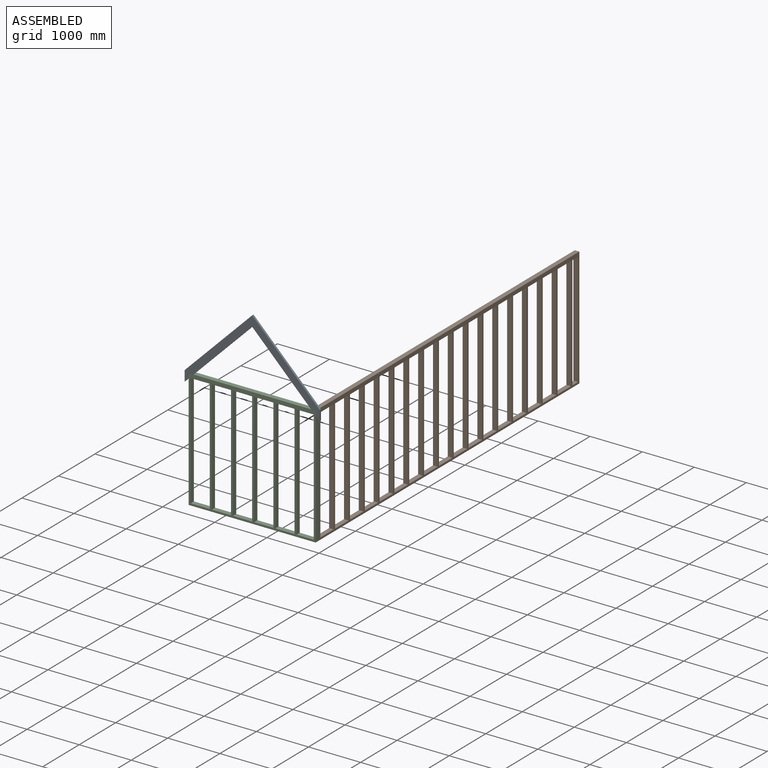
[diagram: assembled view]
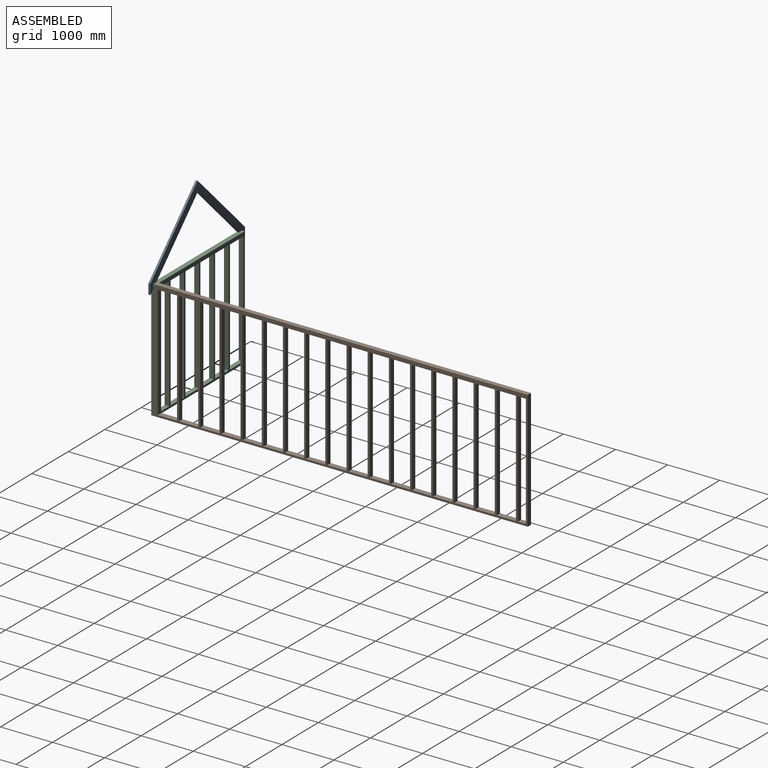
[diagram: assembled view, second angle]
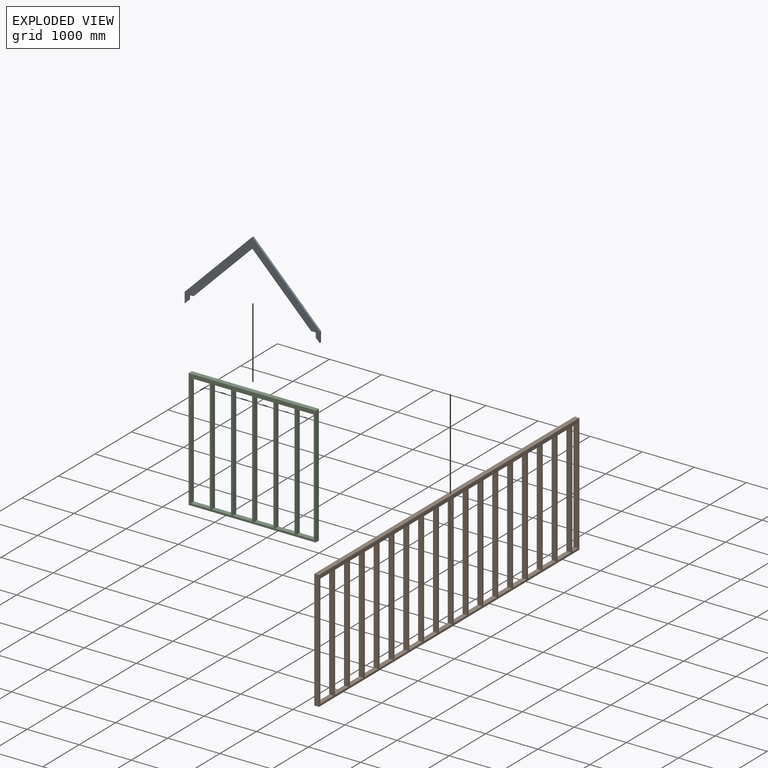
[diagram: exploded view]
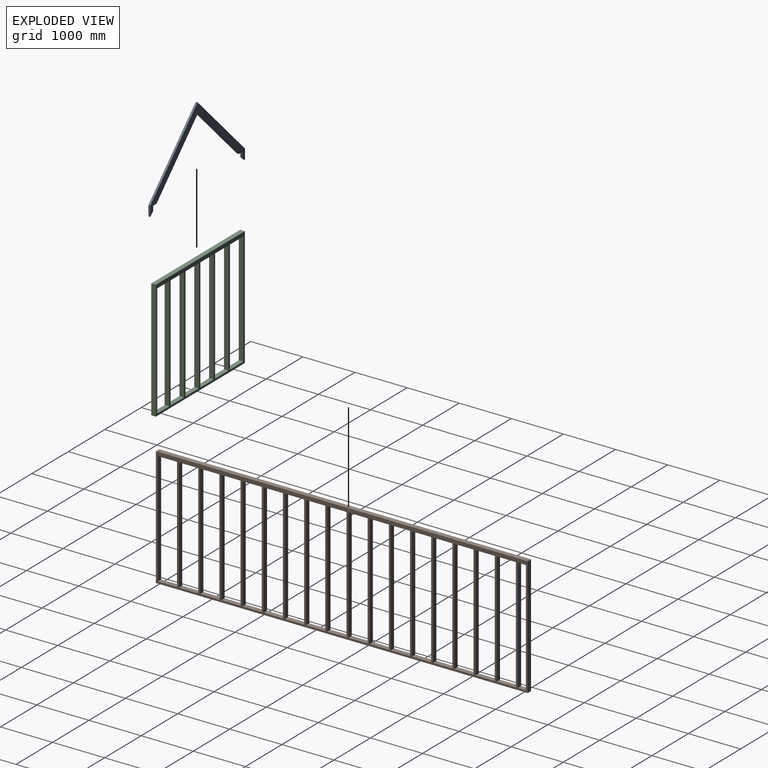
[diagram: exploded view, second angle]
ASSEMBLY  parts=3 mates=2
PART A: 14 faces, bbox 2590.8x38.1x1493 mm
  f0: plane 1130.3x1130.3mm, normal (0.71,0,-0.71), area 60902.1mm2, adj f1,f11,f12,f13
  f1: plane 1130.3x1130.3mm, normal (-0.71,0,-0.71), area 60902.1mm2, adj f0,f2,f12,f13
  f2: plane 88.9x38.1mm, normal (0,0,-1), area 3387.1mm2, adj f1,f3,f12,f13
  f3: plane 88.9x38.1mm, normal (-1,0,0), area 3387.1mm2, adj f2,f4,f12,f13
  f4: plane 76.21x76.21mm, normal (-0.71,0,-0.71), area 4106.1mm2, adj f3,f5,f12,f13
  f5: plane 197.57x38.1mm, normal (1,0,0), area 7527.3mm2, adj f4,f6,f12,f13
  f6: plane 1295.4x1295.4mm, normal (0.71,0,0.71), area 69798.2mm2, adj f5,f7,f12,f13
  f7: plane 1295.4x1295.4mm, normal (-0.71,0,0.71), area 69798.2mm2, adj f6,f8,f12,f13
  f8: plane 197.57x38.1mm, normal (-1,0,0), area 7527.3mm2, adj f7,f9,f12,f13
  f9: plane 76.21x76.21mm, normal (0.71,0,-0.71), area 4106.1mm2, adj f8,f10,f12,f13
  f10: plane 88.9x38.1mm, normal (1,0,0), area 3387.1mm2, adj f9,f11,f12,f13
  f11: plane 88.9x38.1mm, normal (0,0,-1), area 3387.1mm2, adj f0,f10,f12,f13
  f12: plane 2590.8x1492.97mm, normal (0,1,0), area 503950.6mm2, adj f0,f1,f2,f3,f4,f5,f6,f7
  f13: plane 2590.8x1492.97mm, normal (0,-1,0), area 503950.6mm2, adj f0,f1,f2,f3,f4,f5,f6,f7
PART B: 78 faces, bbox 88.9x7137.4x2286 mm
  f0: plane 2286x88.9mm, normal (0,-1,0), area 203225.4mm2, adj f1,f75,f76,f77
  f1: plane 7137.4x88.9mm, normal (0,0,-1), area 634514.9mm2, adj f0,f2,f76,f77
  f2: plane 2286x88.9mm, normal (0,1,0), area 203225.4mm2, adj f1,f75,f76,f77
  f3: plane 368.3x88.9mm, normal (0,0,1), area 32741.9mm2, adj f4,f57,f76,f77
  f4: plane 2171.7x88.9mm, normal (0,1,0), area 193064.1mm2, adj f3,f5,f76,f77
  f5: plane 368.3x88.9mm, normal (0,0,-1), area 32741.9mm2, adj f4,f57,f76,f77
  f6: plane 368.3x88.9mm, normal (0,0,1), area 32741.9mm2, adj f7,f58,f76,f77
  f7: plane 2171.7x88.9mm, normal (0,1,0), area 193064.1mm2, adj f6,f8,f76,f77
  f8: plane 368.3x88.9mm, normal (0,0,-1), area 32741.9mm2, adj f7,f58,f76,f77
  f9: plane 368.3x88.9mm, normal (0,0,1), area 32741.9mm2, adj f10,f59,f76,f77
  f10: plane 2171.7x88.9mm, normal (0,1,0), area 193064.1mm2, adj f9,f11,f76,f77
  f11: plane 368.3x88.9mm, normal (0,0,-1), area 32741.9mm2, adj f10,f59,f76,f77
  f12: plane 368.3x88.9mm, normal (0,0,1), area 32741.9mm2, adj f13,f60,f76,f77
  f13: plane 2171.7x88.9mm, normal (0,1,0), area 193064.1mm2, adj f12,f14,f76,f77
  f14: plane 368.3x88.9mm, normal (0,0,-1), area 32741.9mm2, adj f13,f60,f76,f77
  f15: plane 368.3x88.9mm, normal (0,0,1), area 32741.9mm2, adj f16,f61,f76,f77
  f16: plane 2171.7x88.9mm, normal (0,1,0), area 193064.1mm2, adj f15,f17,f76,f77
  f17: plane 368.3x88.9mm, normal (0,0,-1), area 32741.9mm2, adj f16,f61,f76,f77
  f18: plane 368.3x88.9mm, normal (0,0,1), area 32741.9mm2, adj f19,f62,f76,f77
  f19: plane 2171.7x88.9mm, normal (0,1,0), area 193064.1mm2, adj f18,f20,f76,f77
  f20: plane 368.3x88.9mm, normal (0,0,-1), area 32741.9mm2, adj f19,f62,f76,f77
  f21: plane 368.3x88.9mm, normal (0,0,1), area 32741.9mm2, adj f22,f63,f76,f77
  f22: plane 2171.7x88.9mm, normal (0,1,0), area 193064.1mm2, adj f21,f23,f76,f77
  f23: plane 368.3x88.9mm, normal (0,0,-1), area 32741.9mm2, adj f22,f63,f76,f77
  f24: plane 368.3x88.9mm, normal (0,0,1), area 32741.9mm2, adj f25,f64,f76,f77
  f25: plane 2171.7x88.9mm, normal (0,1,0), area 193064.1mm2, adj f24,f26,f76,f77
  f26: plane 368.3x88.9mm, normal (0,0,-1), area 32741.9mm2, adj f25,f64,f76,f77
  f27: plane 368.3x88.9mm, normal (0,0,1), area 32741.9mm2, adj f28,f65,f76,f77
  f28: plane 2171.7x88.9mm, normal (0,1,0), area 193064.1mm2, adj f27,f29,f76,f77
  f29: plane 368.3x88.9mm, normal (0,0,-1), area 32741.9mm2, adj f28,f65,f76,f77
  f30: plane 368.3x88.9mm, normal (0,0,1), area 32741.9mm2, adj f31,f66,f76,f77
  f31: plane 2171.7x88.9mm, normal (0,1,0), area 193064.1mm2, adj f30,f32,f76,f77
  f32: plane 368.3x88.9mm, normal (0,0,-1), area 32741.9mm2, adj f31,f66,f76,f77
  f33: plane 368.3x88.9mm, normal (0,0,1), area 32741.9mm2, adj f34,f67,f76,f77
  f34: plane 2171.7x88.9mm, normal (0,1,0), area 193064.1mm2, adj f33,f35,f76,f77
  f35: plane 368.3x88.9mm, normal (0,0,-1), area 32741.9mm2, adj f34,f67,f76,f77
  f36: plane 368.3x88.9mm, normal (0,0,1), area 32741.9mm2, adj f37,f68,f76,f77
  f37: plane 2171.7x88.9mm, normal (0,1,0), area 193064.1mm2, adj f36,f38,f76,f77
  f38: plane 368.3x88.9mm, normal (0,0,-1), area 32741.9mm2, adj f37,f68,f76,f77
  f39: plane 368.3x88.9mm, normal (0,0,1), area 32741.9mm2, adj f40,f69,f76,f77
  f40: plane 2171.7x88.9mm, normal (0,1,0), area 193064.1mm2, adj f39,f41,f76,f77
  f41: plane 368.3x88.9mm, normal (0,0,-1), area 32741.9mm2, adj f40,f69,f76,f77
  f42: plane 368.3x88.9mm, normal (0,0,1), area 32741.9mm2, adj f43,f70,f76,f77
  f43: plane 2171.7x88.9mm, normal (0,1,0), area 193064.1mm2, adj f42,f44,f76,f77
  f44: plane 368.3x88.9mm, normal (0,0,-1), area 32741.9mm2, adj f43,f70,f76,f77
  f45: plane 368.3x88.9mm, normal (0,0,1), area 32741.9mm2, adj f46,f71,f76,f77
  f46: plane 2171.7x88.9mm, normal (0,1,0), area 193064.1mm2, adj f45,f47,f76,f77
  f47: plane 368.3x88.9mm, normal (0,0,-1), area 32741.9mm2, adj f46,f71,f76,f77
  f48: plane 368.3x88.9mm, normal (0,0,1), area 32741.9mm2, adj f49,f72,f76,f77
  f49: plane 2171.7x88.9mm, normal (0,1,0), area 193064.1mm2, adj f48,f50,f76,f77
  f50: plane 368.3x88.9mm, normal (0,0,-1), area 32741.9mm2, adj f49,f72,f76,f77
  f51: plane 2171.7x88.9mm, normal (0,1,0), area 193064.1mm2, adj f52,f73,f76,f77
  f52: plane 152.4x88.9mm, normal (0,0,-1), area 13548.4mm2, adj f51,f53,f76,f77
  f53: plane 2171.7x88.9mm, normal (0,-1,0), area 193064.1mm2, adj f52,f73,f76,f77
  f54: plane 368.3x88.9mm, normal (0,0,1), area 32741.9mm2, adj f55,f74,f76,f77
  f55: plane 2171.7x88.9mm, normal (0,1,0), area 193064.1mm2, adj f54,f56,f76,f77
  f56: plane 368.3x88.9mm, normal (0,0,-1), area 32741.9mm2, adj f55,f74,f76,f77
  f57: plane 2171.7x88.9mm, normal (0,-1,0), area 193064.1mm2, adj f3,f5,f76,f77
  f58: plane 2171.7x88.9mm, normal (0,-1,0), area 193064.1mm2, adj f6,f8,f76,f77
  f59: plane 2171.7x88.9mm, normal (0,-1,0), area 193064.1mm2, adj f9,f11,f76,f77
  f60: plane 2171.7x88.9mm, normal (0,-1,0), area 193064.1mm2, adj f12,f14,f76,f77
  f61: plane 2171.7x88.9mm, normal (0,-1,0), area 193064.1mm2, adj f15,f17,f76,f77
  f62: plane 2171.7x88.9mm, normal (0,-1,0), area 193064.1mm2, adj f18,f20,f76,f77
  f63: plane 2171.7x88.9mm, normal (0,-1,0), area 193064.1mm2, adj f21,f23,f76,f77
  f64: plane 2171.7x88.9mm, normal (0,-1,0), area 193064.1mm2, adj f24,f26,f76,f77
  f65: plane 2171.7x88.9mm, normal (0,-1,0), area 193064.1mm2, adj f27,f29,f76,f77
  f66: plane 2171.7x88.9mm, normal (0,-1,0), area 193064.1mm2, adj f30,f32,f76,f77
  f67: plane 2171.7x88.9mm, normal (0,-1,0), area 193064.1mm2, adj f33,f35,f76,f77
  f68: plane 2171.7x88.9mm, normal (0,-1,0), area 193064.1mm2, adj f36,f38,f76,f77
  f69: plane 2171.7x88.9mm, normal (0,-1,0), area 193064.1mm2, adj f39,f41,f76,f77
  f70: plane 2171.7x88.9mm, normal (0,-1,0), area 193064.1mm2, adj f42,f44,f76,f77
  f71: plane 2171.7x88.9mm, normal (0,-1,0), area 193064.1mm2, adj f45,f47,f76,f77
  f72: plane 2171.7x88.9mm, normal (0,-1,0), area 193064.1mm2, adj f48,f50,f76,f77
  f73: plane 152.4x88.9mm, normal (0,0,1), area 13548.4mm2, adj f51,f53,f76,f77
  f74: plane 2171.7x88.9mm, normal (0,-1,0), area 193064.1mm2, adj f54,f56,f76,f77
  f75: plane 7137.4x88.9mm, normal (0,0,1), area 634514.9mm2, adj f0,f2,f76,f77
  f76: plane 7137.4x2286mm, normal (-1,0,0), area 2387898.4mm2, adj f0,f1,f2,f3,f4,f5,f6,f7
  f77: plane 7137.4x2286mm, normal (1,0,0), area 2387898.4mm2, adj f0,f1,f2,f3,f4,f5,f6,f7
PART C: 30 faces, bbox 2438.4x88.9x2286 mm
  f0: plane 2171.7x88.9mm, normal (1,0,0), area 193064.1mm2, adj f1,f27,f28,f29
  f1: plane 330.2x88.9mm, normal (0,0,-1), area 29354.8mm2, adj f0,f2,f28,f29
  f2: plane 2171.7x88.9mm, normal (-1,0,0), area 193064.1mm2, adj f1,f27,f28,f29
  f3: plane 2171.7x88.9mm, normal (1,0,0), area 193064.1mm2, adj f4,f21,f28,f29
  f4: plane 368.3x88.9mm, normal (0,0,-1), area 32741.9mm2, adj f3,f5,f28,f29
  f5: plane 2171.7x88.9mm, normal (-1,0,0), area 193064.1mm2, adj f4,f21,f28,f29
  f6: plane 2171.7x88.9mm, normal (1,0,0), area 193064.1mm2, adj f7,f22,f28,f29
  f7: plane 368.3x88.9mm, normal (0,0,-1), area 32741.9mm2, adj f6,f8,f28,f29
  f8: plane 2171.7x88.9mm, normal (-1,0,0), area 193064.1mm2, adj f7,f22,f28,f29
  f9: plane 2171.7x88.9mm, normal (1,0,0), area 193064.1mm2, adj f10,f23,f28,f29
  f10: plane 368.3x88.9mm, normal (0,0,-1), area 32741.9mm2, adj f9,f11,f28,f29
  f11: plane 2171.7x88.9mm, normal (-1,0,0), area 193064.1mm2, adj f10,f23,f28,f29
  f12: plane 2171.7x88.9mm, normal (1,0,0), area 193064.1mm2, adj f13,f24,f28,f29
  f13: plane 368.3x88.9mm, normal (0,0,-1), area 32741.9mm2, adj f12,f14,f28,f29
  f14: plane 2171.7x88.9mm, normal (-1,0,0), area 193064.1mm2, adj f13,f24,f28,f29
  f15: plane 2171.7x88.9mm, normal (1,0,0), area 193064.1mm2, adj f16,f25,f28,f29
  f16: plane 368.3x88.9mm, normal (0,0,-1), area 32741.9mm2, adj f15,f17,f28,f29
  f17: plane 2171.7x88.9mm, normal (-1,0,0), area 193064.1mm2, adj f16,f25,f28,f29
  f18: plane 2286x88.9mm, normal (-1,0,0), area 203225.4mm2, adj f19,f26,f28,f29
  f19: plane 2438.4x88.9mm, normal (0,0,-1), area 216773.8mm2, adj f18,f20,f28,f29
  f20: plane 2286x88.9mm, normal (1,0,0), area 203225.4mm2, adj f19,f26,f28,f29
  f21: plane 368.3x88.9mm, normal (0,0,1), area 32741.9mm2, adj f3,f5,f28,f29
  f22: plane 368.3x88.9mm, normal (0,0,1), area 32741.9mm2, adj f6,f8,f28,f29
  f23: plane 368.3x88.9mm, normal (0,0,1), area 32741.9mm2, adj f9,f11,f28,f29
  f24: plane 368.3x88.9mm, normal (0,0,1), area 32741.9mm2, adj f12,f14,f28,f29
  f25: plane 368.3x88.9mm, normal (0,0,1), area 32741.9mm2, adj f15,f17,f28,f29
  f26: plane 2438.4x88.9mm, normal (0,0,1), area 216773.8mm2, adj f18,f20,f28,f29
  f27: plane 330.2x88.9mm, normal (0,0,1), area 29354.8mm2, adj f0,f2,f28,f29
  f28: plane 2438.4x2286mm, normal (0,1,0), area 857901.5mm2, adj f0,f1,f2,f3,f4,f5,f6,f7
  f29: plane 2438.4x2286mm, normal (0,-1,0), area 857901.5mm2, adj f0,f1,f2,f3,f4,f5,f6,f7
PLACE A t=(-76.21,0,2120.89)mm
PLACE B at identity
PLACE C at identity fixed
MATE fastened A.f11 <-> C.f26  axis (0,0,1) through (0,0,2286)mm
MATE fastened B.f1 <-> C.f19  axis (0,0,-1) through (2438.4,88.9,0)mm
